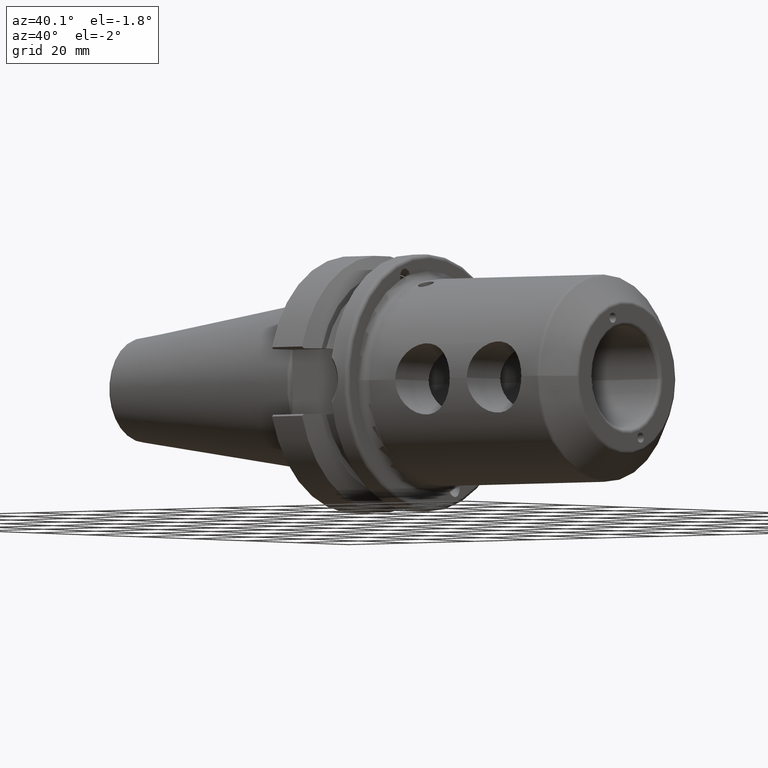
[diagram: clean part render]
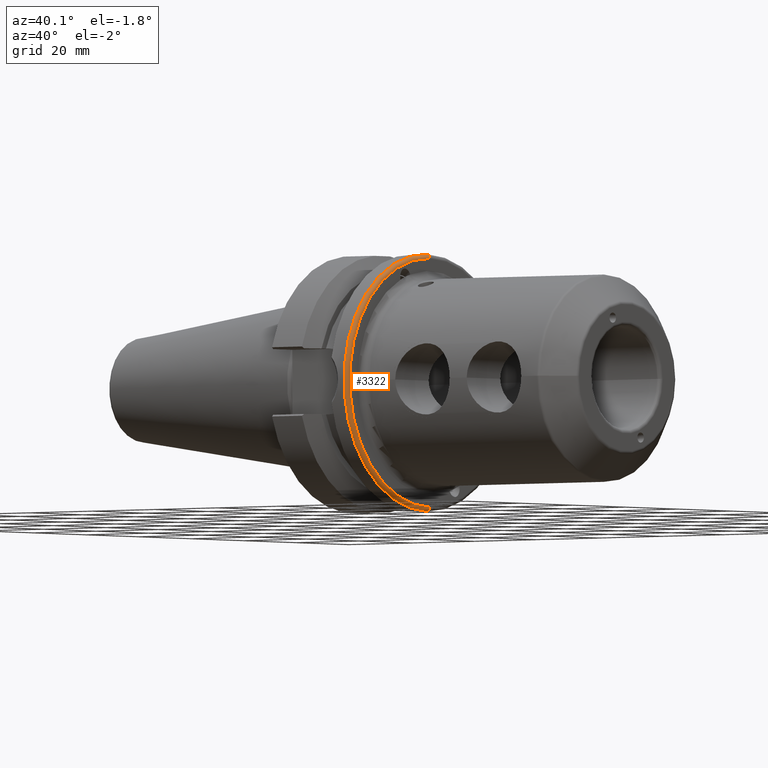
[diagram: same view with one face highlighted and labeled with its STEP entity id]
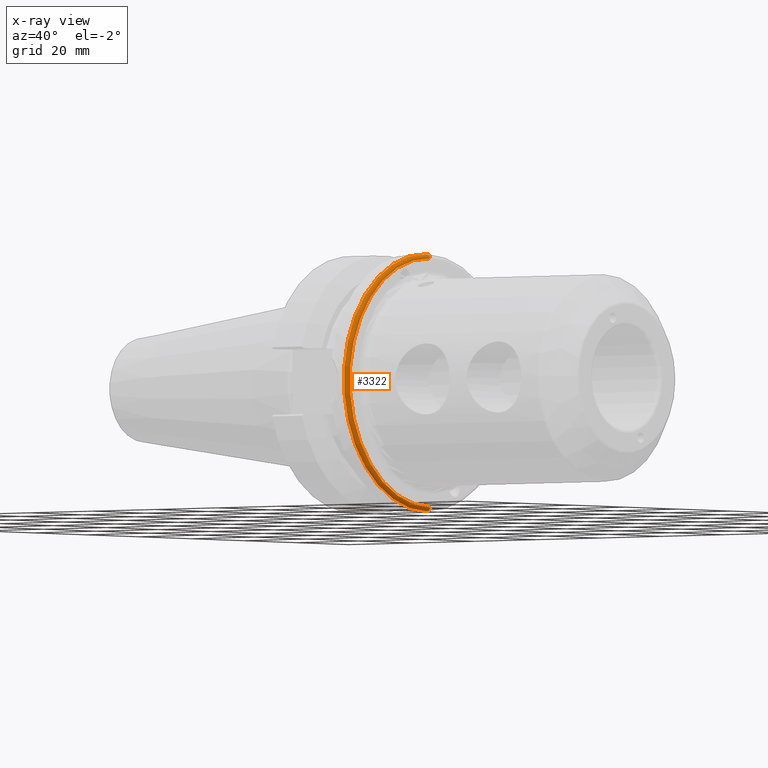
[diagram: x-ray of the same camera — body ghosted, the highlighted face saturated]
A machine part, auxiliary view. The second image highlights one B-rep face of the part: STEP entity #3322.
The next image is the same camera in x-ray: the body ghosted, the highlighted face saturated — about 0% of this face is hidden behind the body in this view.
In plain terms, the highlighted toroidal blend (fillet) surface has major radius 30.5 mm and minor (blend) radius 1 mm.
Its self-contained STEP definition (entity closure, byte-faithful):
#637=CARTESIAN_POINT('',(2.7E1,0.E0,0.E0));
#638=DIRECTION('',(-1.E0,0.E0,0.E0));
#639=DIRECTION('',(0.E0,0.E0,-1.E0));
#640=AXIS2_PLACEMENT_3D('',#637,#638,#639);
#695=CARTESIAN_POINT('',(2.6E1,-3.677058657559E-13,-3.05E1));
#696=DIRECTION('',(0.E0,-1.E0,1.201816424157E-14));
#697=DIRECTION('',(0.E0,-1.201816424157E-14,-1.E0));
#698=AXIS2_PLACEMENT_3D('',#695,#696,#697);
#712=CARTESIAN_POINT('',(2.6E1,0.E0,0.E0));
#713=DIRECTION('',(-1.E0,0.E0,0.E0));
#714=DIRECTION('',(0.E0,0.E0,-1.E0));
#715=AXIS2_PLACEMENT_3D('',#712,#713,#714);
#2241=CARTESIAN_POINT('',(2.6E1,-4.005518139394E-12,3.05E1));
#2242=DIRECTION('',(0.E0,1.E0,1.313289754723E-13));
#2243=DIRECTION('',(0.E0,-1.313289754723E-13,1.E0));
#2244=AXIS2_PLACEMENT_3D('',#2241,#2242,#2243);
#2287=CARTESIAN_POINT('',(2.6E1,0.E0,-3.15E1));
#2288=CARTESIAN_POINT('',(2.6E1,0.E0,3.15E1));
#2289=VERTEX_POINT('',#2287);
#2290=VERTEX_POINT('',#2288);
#2291=CARTESIAN_POINT('',(2.7E1,0.E0,-3.05E1));
#2292=CARTESIAN_POINT('',(2.7E1,0.E0,3.05E1));
#2293=VERTEX_POINT('',#2291);
#2294=VERTEX_POINT('',#2292);
#3308=CARTESIAN_POINT('',(2.6E1,0.E0,0.E0));
#3309=DIRECTION('',(-1.E0,0.E0,0.E0));
#3310=DIRECTION('',(0.E0,9.684522776956E-1,-2.491990887348E-1));
#3311=AXIS2_PLACEMENT_3D('',#3308,#3309,#3310);
#3312=TOROIDAL_SURFACE('',#3311,3.05E1,1.E0);
#3314=ORIENTED_EDGE('',*,*,#3313,.T.);
#3316=ORIENTED_EDGE('',*,*,#3315,.T.);
#3317=ORIENTED_EDGE('',*,*,#3285,.F.);
#3319=ORIENTED_EDGE('',*,*,#3318,.F.);
#3320=EDGE_LOOP('',(#3314,#3316,#3317,#3319));
#3321=FACE_OUTER_BOUND('',#3320,.F.);
#3322=ADVANCED_FACE('',(#3321),#3312,.T.);
#641=CIRCLE('',#640,3.05E1);
#699=CIRCLE('',#698,1.E0);
#716=CIRCLE('',#715,3.15E1);
#2245=CIRCLE('',#2244,1.E0);
#3285=EDGE_CURVE('',#2293,#2294,#641,.T.);
#3313=EDGE_CURVE('',#2289,#2290,#716,.T.);
#3315=EDGE_CURVE('',#2290,#2294,#2245,.T.);
#3318=EDGE_CURVE('',#2289,#2293,#699,.T.);